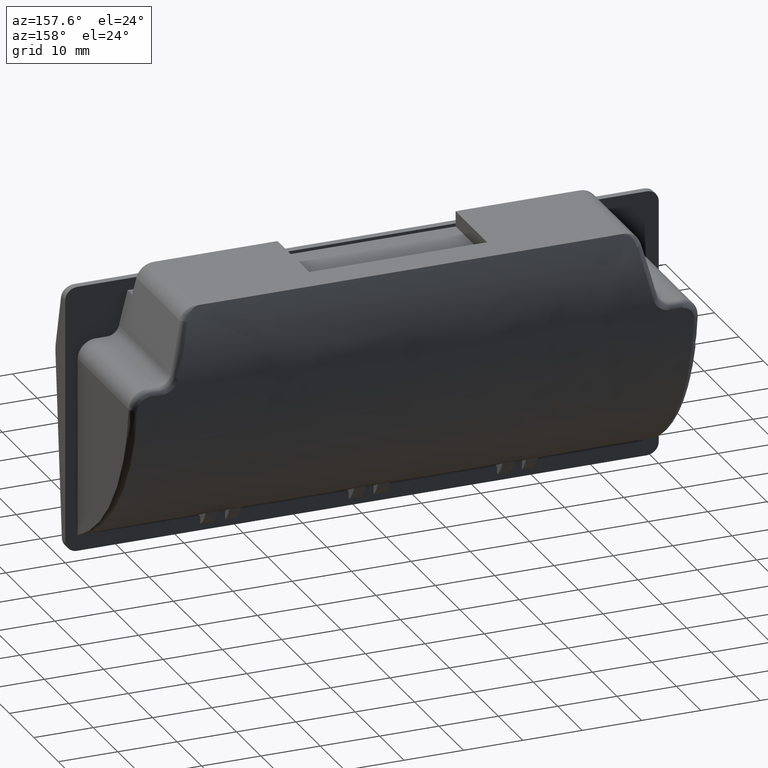
[diagram: clean part render]
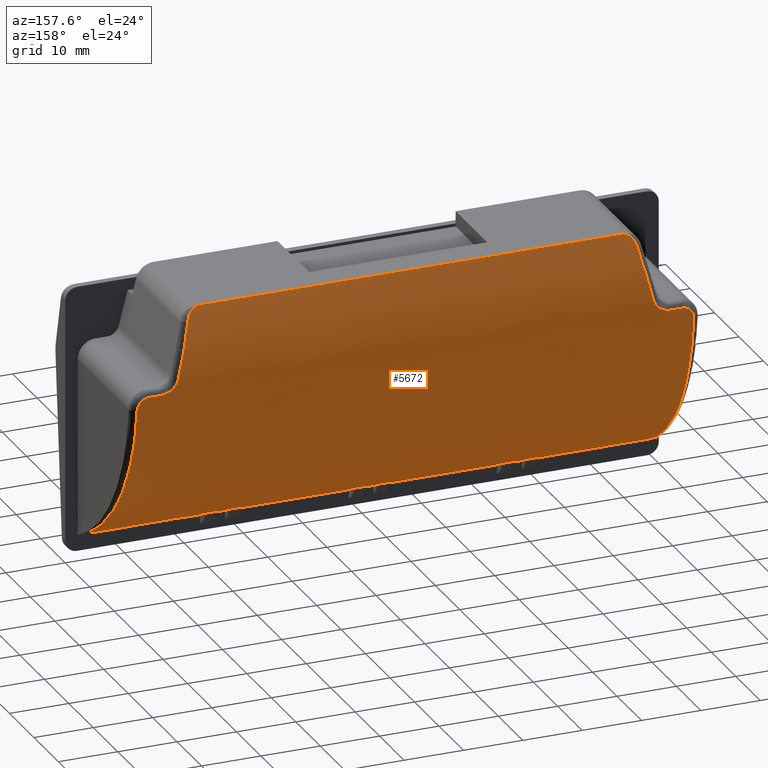
[diagram: same view with one face highlighted and labeled with its STEP entity id]
A machine part, auxiliary view. The second image highlights one B-rep face of the part: STEP entity #5672.
In plain terms, the highlighted face is a freeform B-spline surface patch.
Its self-contained STEP definition (entity closure, byte-faithful):
#182=CARTESIAN_POINT('',(-47.896685749016193,-0.001224091961159,-20.546921611470491));
#183=VERTEX_POINT('',#182);
#184=CARTESIAN_POINT('',(-46.899999999999999,21.852389405818052,9.359535774184069));
#185=VERTEX_POINT('',#184);
#186=CARTESIAN_POINT('',(-47.896685749016193,-0.001224091961159,-20.546921611470491));
#187=CARTESIAN_POINT('',(-47.885773402638563,0.259481165434836,-20.434799618005250));
#188=CARTESIAN_POINT('',(-47.864317647580421,0.772076755020469,-20.214344328507622));
#189=CARTESIAN_POINT('',(-47.832779046622193,1.517805225134992,-19.867136862326682));
#190=CARTESIAN_POINT('',(-47.802418920714970,2.230138305095111,-19.517290070802410));
#191=CARTESIAN_POINT('',(-47.773245712067776,2.908845177937521,-19.165151865281640));
#192=CARTESIAN_POINT('',(-47.745257845779683,3.554638972780887,-18.812920656426929));
#193=CARTESIAN_POINT('',(-47.718455584276178,4.168058561744786,-18.462203011982002));
#194=CARTESIAN_POINT('',(-47.692838732872502,4.749725880659209,-18.114641992472290));
#195=CARTESIAN_POINT('',(-47.668407215307653,5.300272014121669,-17.771759969972820));
#196=CARTESIAN_POINT('',(-47.645160939336229,5.820347497085275,-17.435000349067948));
#197=CARTESIAN_POINT('',(-47.623099785851593,6.310611906358920,-17.105719307174109));
#198=CARTESIAN_POINT('',(-47.602223758593681,6.771728957045408,-16.785190470616321));
#199=CARTESIAN_POINT('',(-47.582532428413458,7.204361302212331,-16.474605907650890));
#200=CARTESIAN_POINT('',(-47.564026844765017,7.609163722067380,-16.175080166814439));
#201=CARTESIAN_POINT('',(-47.546702965801543,7.986784495201670,-15.887646699884010));
#202=CARTESIAN_POINT('',(-47.503812097618699,8.920330609838373,-15.158035507260561));
#203=CARTESIAN_POINT('',(-47.438086533676028,10.336639639167791,-13.950080177221521));
#204=CARTESIAN_POINT('',(-47.353716663395041,12.118777634518770,-12.195896075829911));
#205=CARTESIAN_POINT('',(-47.278146003832717,13.688244678134330,-10.427140885081601));
#206=CARTESIAN_POINT('',(-47.212780351498068,15.028524516021699,-8.707317518512564));
#207=CARTESIAN_POINT('',(-47.156402691244452,16.181091975844559,-7.037042273072355));
#208=CARTESIAN_POINT('',(-47.107466732424740,17.181155548372541,-5.407441420251323));
#209=CARTESIAN_POINT('',(-47.063686413280230,18.077077904532629,-3.758933633686135));
#210=CARTESIAN_POINT('',(-47.025065797716792,18.871339969496852,-2.098653399444526));
#211=CARTESIAN_POINT('',(-46.991604031524943,19.566795058013358,-0.433301272962154));
#212=CARTESIAN_POINT('',(-46.963298119086488,20.166690797693182,1.230867502905395));
#213=CARTESIAN_POINT('',(-46.940158262096460,20.674390251261880,2.888064594630160));
#214=CARTESIAN_POINT('',(-46.922145723514390,21.094157752944991,4.532893349213828));
#215=CARTESIAN_POINT('',(-46.909399263877361,21.428112216367659,6.160617492438631));
#216=CARTESIAN_POINT('',(-46.901416246937977,21.687043396067569,7.766168532635901));
#217=CARTESIAN_POINT('',(-46.900468573068011,21.797683771515960,8.832361482185121));
#218=CARTESIAN_POINT('',(-46.899999999999999,21.852389405818052,9.359535774184069));
#219=B_SPLINE_CURVE_WITH_KNOTS('',3,(#186,#187,#188,#189,#190,#191,#192,#193,#194,#195,#196,#197,#198,#199,#200,#201,#202,#203,#204,#205,#206,#207,#208,#209,#210,#211,#212,#213,#214,#215,#216,#217,#218),.UNSPECIFIED.,.F.,.U.,(4,1,1,1,1,1,1,1,1,1,1,1,1,1,1,1,1,1,1,1,1,1,1,1,1,1,1,1,1,1,4),(0.000005639576252,0.021896131467624,0.043046539183044,0.063451219886814,0.083110170459251,0.102023387923423,0.120190869448762,0.137612612355442,0.154288614119736,0.170218872380634,0.185403384948071,0.199842149813302,0.213535165162078,0.226482429391637,0.238683941132872,0.250139699279726,0.317873748717035,0.382114477535371,0.442861840647980,0.500115838875528,0.550158430046920,0.599280517912298,0.647482332891308,0.694764119786767,0.741126138904787,0.786568667287427,0.831092000071647,0.874696451990360,0.917382359033694,0.959150080291330,1.0),.UNSPECIFIED.);
#220=EDGE_CURVE('',#183,#185,#219,.T.);
#358=CARTESIAN_POINT('',(-44.900000000000013,21.980008804350351,11.416678631326921));
#359=VERTEX_POINT('',#358);
#375=CARTESIAN_POINT('',(-46.899999999999999,21.852389405818052,9.359535774184069));
#376=CARTESIAN_POINT('',(-46.900000000000020,21.864516404296889,9.493039091184595));
#377=CARTESIAN_POINT('',(-46.887483280503481,21.875774419913810,9.625251615995460));
#378=CARTESIAN_POINT('',(-46.849967114386693,21.891425652238929,9.821632204573520));
#379=CARTESIAN_POINT('',(-46.834293989078233,21.896429323675399,9.886699851274436));
#380=CARTESIAN_POINT('',(-46.797200243700942,21.905878902245579,10.013954488775161));
#381=CARTESIAN_POINT('',(-46.754263704559712,21.914817017285241,10.138899526170700));
#382=CARTESIAN_POINT('',(-46.699736514937761,21.922807463528301,10.259258262620371));
#383=CARTESIAN_POINT('',(-46.654407360013302,21.928469011575711,10.347770762046160));
#384=CARTESIAN_POINT('',(-46.638557398416779,21.930300940911131,10.376981657535991));
#385=CARTESIAN_POINT('',(-46.605345984128753,21.933857884422551,10.434804214819650));
#386=CARTESIAN_POINT('',(-46.587940779102311,21.935586499632521,10.463478833631010));
#387=CARTESIAN_POINT('',(-46.497951242813883,21.943889836235410,10.603923054933061));
#388=CARTESIAN_POINT('',(-46.416147162315767,21.949507363676659,10.707827195477909));
#389=CARTESIAN_POINT('',(-46.278877352507763,21.956732631416610,10.851123036771400));
#390=CARTESIAN_POINT('',(-46.230676644731410,21.958939430682481,10.896780416855030));
#391=CARTESIAN_POINT('',(-46.154567264591869,21.961978119785890,10.961979767377750));
#392=CARTESIAN_POINT('',(-46.128528106310277,21.962946464013090,10.983183553903631));
#393=CARTESIAN_POINT('',(-46.075751831466746,21.964777170750210,11.024010295074969));
#394=CARTESIAN_POINT('',(-46.048947102310450,21.965642429565630,11.043694267699181));
#395=CARTESIAN_POINT('',(-45.912868158231937,21.969738254051620,11.138514883354990));
#396=CARTESIAN_POINT('',(-45.797487984118469,21.972286621965878,11.202958641015700));
#397=CARTESIAN_POINT('',(-45.614447213703208,21.975281593159298,11.282151905878010));
#398=CARTESIAN_POINT('',(-45.551382428418641,21.976143692292130,11.305717605389750));
#399=CARTESIAN_POINT('',(-45.424263190398563,21.977585776762002,11.345922627654540));
#400=CARTESIAN_POINT('',(-45.360112334454698,21.978169476249771,11.362652418637079));
#401=CARTESIAN_POINT('',(-45.165923140560558,21.979557957052631,11.402933755729549));
#402=CARTESIAN_POINT('',(-45.034165973739107,21.980008804350359,11.416678631326921));
#403=CARTESIAN_POINT('',(-44.900000000000013,21.980008804350351,11.416678631326921));
#404=B_SPLINE_CURVE_WITH_KNOTS('',3,(#375,#376,#377,#378,#379,#380,#381,#382,#383,#384,#385,#386,#387,#388,#389,#390,#391,#392,#393,#394,#395,#396,#397,#398,#399,#400,#401,#402,#403),.UNSPECIFIED.,.F.,.U.,(4,2,2,1,2,2,2,2,2,2,2,2,2,2,4),(0.0,0.124999999999990,0.187499999999986,0.249999999999983,0.312499999999979,0.343749999999979,0.374999999999980,0.499999999999986,0.562499999999992,0.593749999999996,0.624999999999999,0.750000000000001,0.812499999999999,0.874999999999998,1.0),.UNSPECIFIED.);
#405=EDGE_CURVE('',#185,#359,#404,.T.);
#461=CARTESIAN_POINT('',(-42.899999999999999,21.980008804350351,11.416678631326921));
#462=VERTEX_POINT('',#461);
#478=CARTESIAN_POINT('',(-44.900000000000013,21.980008804350351,11.416678631326921));
#479=CARTESIAN_POINT('',(-42.899999999999999,21.980008804350351,11.416678631326921));
#480=QUASI_UNIFORM_CURVE('',1,(#478,#479),.UNSPECIFIED.,.F.,.U.);
#481=EDGE_CURVE('',#359,#462,#480,.T.);
#532=CARTESIAN_POINT('',(-39.991277135578251,21.982236698723849,13.747018506731020));
#533=VERTEX_POINT('',#532);
#547=CARTESIAN_POINT('',(-42.899999999999999,21.980008804350351,11.416678631326921));
#548=CARTESIAN_POINT('',(-42.730981769640920,21.980008804350351,11.416678631326921));
#549=CARTESIAN_POINT('',(-42.564334933638790,21.980503485457071,11.431264111568360));
#550=CARTESIAN_POINT('',(-42.317777236776401,21.981881275858569,11.474133958457980));
#551=CARTESIAN_POINT('',(-42.236163227712453,21.982445618394941,11.491941813435860));
#552=CARTESIAN_POINT('',(-42.114609343296387,21.983427898337819,11.523988364164870));
#553=CARTESIAN_POINT('',(-42.074236090075971,21.983777889493521,11.535560827425360));
#554=CARTESIAN_POINT('',(-41.993782882736618,21.984518532182680,11.560510358557741));
#555=CARTESIAN_POINT('',(-41.953636822896208,21.984909935774599,11.573914774342990));
#556=CARTESIAN_POINT('',(-41.755460677760013,21.986936652594139,11.644850265543340));
#557=CARTESIAN_POINT('',(-41.603792400148293,21.988794214440009,11.714373309548870));
#558=CARTESIAN_POINT('',(-41.386154235536416,21.991588537919611,11.837000692940050));
#559=CARTESIAN_POINT('',(-41.315261231993397,21.992520782920550,11.880950388762621));
#560=CARTESIAN_POINT('',(-41.211423987213628,21.993870347403870,11.951529090558619));
#561=CARTESIAN_POINT('',(-41.177229147259951,21.994312010929640,11.975832007234470));
#562=CARTESIAN_POINT('',(-41.109685014616751,21.995169811494080,12.026010746033290));
#563=CARTESIAN_POINT('',(-41.076261992817820,21.995586815053692,12.051949008904060));
#564=CARTESIAN_POINT('',(-40.912622980210649,21.997567768273811,12.184542900498350));
#565=CARTESIAN_POINT('',(-40.792206983161563,21.998828460150740,12.300167797804850));
#566=CARTESIAN_POINT('',(-40.626584416537867,21.999822926898361,12.487257531373320));
#567=CARTESIAN_POINT('',(-40.573890796368580,22.000004768246470,12.551908605758319));
#568=CARTESIAN_POINT('',(-40.473564453791653,21.999995041823450,12.685816917467671));
#569=CARTESIAN_POINT('',(-40.425811421543067,21.999802361092371,12.755267292585771));
#570=CARTESIAN_POINT('',(-40.291150161124811,21.998550624905111,12.969431452288759));
#571=CARTESIAN_POINT('',(-40.214109644634078,21.996835044621822,13.117654908643090));
#572=CARTESIAN_POINT('',(-40.084293675240097,21.991253291011741,13.424473587816790));
#573=CARTESIAN_POINT('',(-40.031520891476220,21.987388912196071,13.583069988650360));
#574=CARTESIAN_POINT('',(-39.991277135578251,21.982236698723849,13.747018506731020));
#575=B_SPLINE_CURVE_WITH_KNOTS('',3,(#547,#548,#549,#550,#551,#552,#553,#554,#555,#556,#557,#558,#559,#560,#561,#562,#563,#564,#565,#566,#567,#568,#569,#570,#571,#572,#573,#574),.UNSPECIFIED.,.F.,.U.,(4,2,2,2,2,2,2,2,2,2,2,2,2,4),(0.0,0.125000000000002,0.187500000000004,0.218750000000004,0.250000000000005,0.374999999999991,0.437499999999982,0.468749999999980,0.499999999999977,0.624999999999982,0.687499999999983,0.749999999999985,0.874999999999993,1.0),.UNSPECIFIED.);
#576=EDGE_CURVE('',#462,#533,#575,.T.);
#657=CARTESIAN_POINT('',(-37.839148576280898,20.612478520600650,22.514547285819450));
#658=VERTEX_POINT('',#657);
#672=CARTESIAN_POINT('',(-39.991277135578251,21.982236698723849,13.747018506731020));
#673=CARTESIAN_POINT('',(-38.894333844764773,21.841800353381220,18.215841630557282));
#674=CARTESIAN_POINT('',(-37.839148576280863,20.612478520600661,22.514547285819440));
#682=(BOUNDED_CURVE()B_SPLINE_CURVE(2,(#672,#673,#674),.UNSPECIFIED.,.F.,.U.)CURVE()GEOMETRIC_REPRESENTATION_ITEM()QUASI_UNIFORM_CURVE()RATIONAL_B_SPLINE_CURVE((1.0,0.992375855348941,1.0))REPRESENTATION_ITEM(''));
#683=EDGE_CURVE('',#533,#658,#682,.T.);
#750=CARTESIAN_POINT('',(-35.899999999999999,19.893540093386449,24.750000000000000));
#751=VERTEX_POINT('',#750);
#771=CARTESIAN_POINT('',(-37.839148576281019,20.612478520600629,22.514547285819521));
#772=CARTESIAN_POINT('',(-37.811353248017703,20.581593149868969,22.621462789434151));
#773=CARTESIAN_POINT('',(-37.758000227875208,20.522308805710718,22.826686666045831));
#774=CARTESIAN_POINT('',(-37.660629008083028,20.435297137030290,23.115549123659651));
#775=CARTESIAN_POINT('',(-37.554106952614603,20.355457644219719,23.373786843167888));
#776=CARTESIAN_POINT('',(-37.437679125176572,20.283186618034769,23.601667386496331));
#777=CARTESIAN_POINT('',(-37.270447762360909,20.199784309075980,23.859158168393432));
#778=CARTESIAN_POINT('',(-37.031345041766592,20.108158348822581,24.134343147593491));
#779=CARTESIAN_POINT('',(-36.698301672683129,20.015373889383831,24.405048894333149));
#780=CARTESIAN_POINT('',(-36.319895173752997,19.940662341684451,24.618056167207889));
#781=CARTESIAN_POINT('',(-36.041372608112262,19.909405470171940,24.705576427327149));
#782=CARTESIAN_POINT('',(-35.899999999999999,19.893540093386449,24.750000000000000));
#783=B_SPLINE_CURVE_WITH_KNOTS('',3,(#771,#772,#773,#774,#775,#776,#777,#778,#779,#780,#781,#782),.UNSPECIFIED.,.F.,.U.,(4,1,1,1,1,1,1,1,1,4),(0.0,0.107009702832300,0.205404691628871,0.295551452508698,0.377926642308072,0.453154796772866,0.592028208657423,0.726668599921010,0.861262326019188,1.0),.UNSPECIFIED.);
#784=EDGE_CURVE('',#658,#751,#783,.T.);
#1008=CARTESIAN_POINT('',(46.899999999999999,21.852389405818052,9.359535774184069));
#1009=VERTEX_POINT('',#1008);
#1021=CARTESIAN_POINT('',(47.896686583894329,-0.001223783607167,-20.546922386931310));
#1022=VERTEX_POINT('',#1021);
#1035=CARTESIAN_POINT('',(46.899999999999999,21.852389405818052,9.359535774184069));
#1036=CARTESIAN_POINT('',(46.900130361389550,21.824126748446901,9.070914564498111));
#1037=CARTESIAN_POINT('',(46.900392703717657,21.767250311650500,8.490086450027960));
#1038=CARTESIAN_POINT('',(46.902768869087922,21.654446936789871,7.616436966000594));
#1039=CARTESIAN_POINT('',(46.906589546105813,21.520070123925340,6.734975467200311));
#1040=CARTESIAN_POINT('',(46.912002295349417,21.361453989155269,5.846541585613918));
#1041=CARTESIAN_POINT('',(46.918966877459887,21.178431435632142,4.951787939603158));
#1042=CARTESIAN_POINT('',(46.927494300108407,20.970168959908360,4.051468417638176));
#1043=CARTESIAN_POINT('',(46.937581594908011,20.736032664851500,3.146360155846571));
#1044=CARTESIAN_POINT('',(46.949229609765730,20.475354510786619,2.237285367648124));
#1045=CARTESIAN_POINT('',(46.962438156509222,20.187498646524240,1.325105840215020));
#1046=CARTESIAN_POINT('',(46.977207334216253,19.871845990658809,0.410724782644463));
#1047=CARTESIAN_POINT('',(46.993537168571173,19.527801188955529,-0.504913440664827));
#1048=CARTESIAN_POINT('',(47.011427710539891,19.154793556577861,-1.420823115530112));
#1049=CARTESIAN_POINT('',(47.030879008887318,18.752279735175851,-2.335977239578807));
#1050=CARTESIAN_POINT('',(47.051891120707303,18.319745978987100,-3.249307622699699));
#1051=CARTESIAN_POINT('',(47.074464097788422,17.856710541690500,-4.159705203527599));
#1052=CARTESIAN_POINT('',(47.098598031888841,17.362726382553021,-5.066020121980664));
#1053=CARTESIAN_POINT('',(47.124292885518472,16.837382794482920,-5.967063270141456));
#1054=CARTESIAN_POINT('',(47.151549133423842,16.280311382223509,-6.861602833886648));
#1055=CARTESIAN_POINT('',(47.180365331777530,15.691175752283510,-7.748380441149324));
#1056=CARTESIAN_POINT('',(47.221492097410703,14.849942860277499,-8.936447779349912));
#1057=CARTESIAN_POINT('',(47.278137871129097,13.688388664463799,-10.426955493683650));
#1058=CARTESIAN_POINT('',(47.353703007193701,12.119038236836079,-12.195614584156310));
#1059=CARTESIAN_POINT('',(47.438086720873748,10.336814078119859,-13.949921898988350));
#1060=CARTESIAN_POINT('',(47.510202490910437,8.782194352350041,-15.275855197761461));
#1061=CARTESIAN_POINT('',(47.567787853458903,7.527715837626763,-16.241087689689920));
#1062=CARTESIAN_POINT('',(47.609287539917183,6.617587892288705,-16.899789099781930));
#1063=CARTESIAN_POINT('',(47.656212812873193,5.575683268444858,-17.602504758107148));
#1064=CARTESIAN_POINT('',(47.708581939447740,4.395607381269108,-18.337172356528821));
#1065=CARTESIAN_POINT('',(47.766396713674943,3.070346624138356,-19.088091536228621));
#1066=CARTESIAN_POINT('',(47.829634092642529,1.596693247487032,-19.845537381553321));
#1067=CARTESIAN_POINT('',(47.873768018016023,0.544945397550837,-20.307190346547650));
#1068=CARTESIAN_POINT('',(47.896686583894329,-0.001223783607167,-20.546922386931310));
#1069=B_SPLINE_CURVE_WITH_KNOTS('',3,(#1035,#1036,#1037,#1038,#1039,#1040,#1041,#1042,#1043,#1044,#1045,#1046,#1047,#1048,#1049,#1050,#1051,#1052,#1053,#1054,#1055,#1056,#1057,#1058,#1059,#1060,#1061,#1062,#1063,#1064,#1065,#1066,#1067,#1068),.UNSPECIFIED.,.F.,.U.,(4,1,1,1,1,1,1,1,1,1,1,1,1,1,1,1,1,1,1,1,1,1,1,1,1,1,1,1,1,1,1,4),(0.0,0.022353797540702,0.044985308220906,0.067894600150437,0.091081738966689,0.114546787950870,0.138289808137503,0.162310858417658,0.186609995636323,0.211187274684329,0.236042748585162,0.261176468577026,0.286588484190434,0.312278843321648,0.338247592302205,0.364494775964783,0.391020437705642,0.417824619543845,0.444907362177449,0.472268705036868,0.499908686335553,0.557152466290041,0.617895502307022,0.682137794523149,0.749879297045279,0.775335300922110,0.804216655709691,0.836523269099693,0.872255035229616,0.911411835329557,0.953993538109033,0.999993731756879),.UNSPECIFIED.);
#1070=EDGE_CURVE('',#1009,#1022,#1069,.T.);
#1183=CARTESIAN_POINT('',(44.900000000000013,21.980008804350351,11.416678631326921));
#1184=VERTEX_POINT('',#1183);
#1237=CARTESIAN_POINT('',(44.900000000000013,21.980008804350351,11.416678631326921));
#1238=CARTESIAN_POINT('',(45.034157543835583,21.980008804350351,11.416678631326921));
#1239=CARTESIAN_POINT('',(45.166743250429903,21.979558311088311,11.402933143789509));
#1240=CARTESIAN_POINT('',(45.363287789990672,21.978143576482928,11.361906629499529));
#1241=CARTESIAN_POINT('',(45.428114319701983,21.977547271626989,11.344832148995909));
#1242=CARTESIAN_POINT('',(45.554572078045133,21.976102027736850,11.304573937599891));
#1243=CARTESIAN_POINT('',(45.678397935115051,21.974400330008780,11.258095900646840));
#1244=CARTESIAN_POINT('',(45.797053272866769,21.972122537790071,11.199401437881241));
#1245=CARTESIAN_POINT('',(45.913093558826603,21.969508838426009,11.134530081744790));
#1246=CARTESIAN_POINT('',(45.970106082118257,21.968023829086309,11.098775070520199));
#1247=CARTESIAN_POINT('',(46.133933751448971,21.963066975897569,10.984175122711999));
#1248=CARTESIAN_POINT('',(46.234143428558923,21.959097088623452,10.897959922826020));
#1249=CARTESIAN_POINT('',(46.371419729854821,21.951856599926870,10.754447357916680));
#1250=CARTESIAN_POINT('',(46.414989533308542,21.949227525523440,10.704227527729550));
#1251=CARTESIAN_POINT('',(46.497638209249729,21.943470910355352,10.598902986129429));
#1252=CARTESIAN_POINT('',(46.536128926052662,21.940383025952180,10.544535332784161));
#1253=CARTESIAN_POINT('',(46.643013604620592,21.930471997702220,10.377122597889009));
#1254=CARTESIAN_POINT('',(46.703099825999587,21.922991176258058,10.259548320852550));
#1255=CARTESIAN_POINT('',(46.776520987866398,21.910196778423600,10.074280293994200));
#1256=CARTESIAN_POINT('',(46.798245242344933,21.905647171631578,10.010754968979620));
#1257=CARTESIAN_POINT('',(46.835205675839063,21.896160721996349,9.883165821651311));
#1258=CARTESIAN_POINT('',(46.850561021648872,21.891209304053589,9.818870905580743));
#1259=CARTESIAN_POINT('',(46.887485947057542,21.875708923498941,9.624525533234916));
#1260=CARTESIAN_POINT('',(46.899999999999977,21.864515441253950,9.493028489268163));
#1261=CARTESIAN_POINT('',(46.899999999999999,21.852389405818052,9.359535774184069));
#1262=B_SPLINE_CURVE_WITH_KNOTS('',3,(#1237,#1238,#1239,#1240,#1241,#1242,#1243,#1244,#1245,#1246,#1247,#1248,#1249,#1250,#1251,#1252,#1253,#1254,#1255,#1256,#1257,#1258,#1259,#1260,#1261),.UNSPECIFIED.,.F.,.U.,(4,2,2,1,2,2,2,2,2,2,2,2,4),(0.0,0.124999999999997,0.187499999999995,0.249999999999994,0.312499999999992,0.374999999999990,0.499999999999992,0.562499999999994,0.624999999999995,0.749999999999997,0.812499999999997,0.874999999999998,1.0),.UNSPECIFIED.);
#1263=EDGE_CURVE('',#1184,#1009,#1262,.T.);
#1282=CARTESIAN_POINT('',(42.899999999999999,21.980008804350351,11.416678631326921));
#1283=VERTEX_POINT('',#1282);
#1307=CARTESIAN_POINT('',(42.899999999999999,21.980008804350351,11.416678631326921));
#1308=CARTESIAN_POINT('',(44.900000000000013,21.980008804350351,11.416678631326921));
#1309=QUASI_UNIFORM_CURVE('',1,(#1307,#1308),.UNSPECIFIED.,.F.,.U.);
#1310=EDGE_CURVE('',#1283,#1184,#1309,.T.);
#1393=CARTESIAN_POINT('',(39.991277135578251,21.982236698723849,13.747018506730960));
#1394=VERTEX_POINT('',#1393);
#1436=CARTESIAN_POINT('',(39.991277135578251,21.982236698723849,13.747018506730960));
#1437=CARTESIAN_POINT('',(40.031522691082230,21.987389142590910,13.583062657259410));
#1438=CARTESIAN_POINT('',(40.084339528145250,21.991258618018829,13.424293762526631));
#1439=CARTESIAN_POINT('',(40.181938662461192,21.995450089303151,13.193726581355641));
#1440=CARTESIAN_POINT('',(40.217549525540697,21.996577930853739,13.118141632228969));
#1441=CARTESIAN_POINT('',(40.295032708775771,21.998342905852368,12.969558078298689));
#1442=CARTESIAN_POINT('',(40.337070871214060,21.998981275477622,12.896301278589140));
#1443=CARTESIAN_POINT('',(40.471739042212782,22.000221551265760,12.682424334465599));
#1444=CARTESIAN_POINT('',(40.571961408969962,22.000152905569738,12.548884251819331));
#1445=CARTESIAN_POINT('',(40.737631981482629,21.999155143041300,12.361854981606861));
#1446=CARTESIAN_POINT('',(40.795424663422487,21.998672607825160,12.301736613592880));
#1447=CARTESIAN_POINT('',(40.916251544596143,21.997475837408480,12.186038405648420));
#1448=CARTESIAN_POINT('',(40.979440554190482,21.996759637753520,12.130333541543431));
#1449=CARTESIAN_POINT('',(41.176187475466790,21.994375652232520,11.971119894856709));
#1450=CARTESIAN_POINT('',(41.314408801789902,21.992509378870501,11.877366376467910));
#1451=CARTESIAN_POINT('',(41.604596893568107,21.988784207866459,11.713979352194571));
#1452=CARTESIAN_POINT('',(41.756728529101402,21.986921399423689,11.644281173066499));
#1453=CARTESIAN_POINT('',(42.074857347257471,21.983672545144781,11.530641484419300));
#1454=CARTESIAN_POINT('',(42.236449230808986,21.982334845307509,11.488244531300561));
#1455=CARTESIAN_POINT('',(42.564508640992621,21.980503417618380,11.431264214890930));
#1456=CARTESIAN_POINT('',(42.730975773987211,21.980008804350341,11.416678631326921));
#1457=CARTESIAN_POINT('',(42.899999999999999,21.980008804350351,11.416678631326921));
#1458=B_SPLINE_CURVE_WITH_KNOTS('',3,(#1436,#1437,#1438,#1439,#1440,#1441,#1442,#1443,#1444,#1445,#1446,#1447,#1448,#1449,#1450,#1451,#1452,#1453,#1454,#1455,#1456,#1457),.UNSPECIFIED.,.F.,.U.,(4,2,2,2,2,2,2,2,2,2,4),(0.0,0.125000000000002,0.187500000000002,0.250000000000002,0.375000000000003,0.437500000000003,0.500000000000003,0.625000000000002,0.750000000000001,0.875000000000001,1.0),.UNSPECIFIED.);
#1459=EDGE_CURVE('',#1394,#1283,#1458,.T.);
#1512=CARTESIAN_POINT('',(37.839148576281147,20.612478520600700,22.514547285819351));
#1513=VERTEX_POINT('',#1512);
#1543=CARTESIAN_POINT('',(37.839148576281147,20.612478520600700,22.514547285819351));
#1544=CARTESIAN_POINT('',(38.894333844764915,21.841800353381295,18.215841630556962));
#1545=CARTESIAN_POINT('',(39.991277135578173,21.982236698723870,13.747018506730960));
#1553=(BOUNDED_CURVE()B_SPLINE_CURVE(2,(#1543,#1544,#1545),.UNSPECIFIED.,.F.,.U.)CURVE()GEOMETRIC_REPRESENTATION_ITEM()QUASI_UNIFORM_CURVE()RATIONAL_B_SPLINE_CURVE((1.0,0.992375855348944,1.0))REPRESENTATION_ITEM(''));
#1554=EDGE_CURVE('',#1513,#1394,#1553,.T.);
#1671=CARTESIAN_POINT('',(35.899999999999999,19.893540093386449,24.750000000000000));
#1672=VERTEX_POINT('',#1671);
#1673=CARTESIAN_POINT('',(35.899999999999999,19.893540093386449,24.750000000000000));
#1674=CARTESIAN_POINT('',(35.971908723157263,19.901021176630248,24.729073450007419));
#1675=CARTESIAN_POINT('',(36.114164903794418,19.915820915557148,24.687674702468460));
#1676=CARTESIAN_POINT('',(36.317985576727331,19.944970250857988,24.605489132863791));
#1677=CARTESIAN_POINT('',(36.511004439492027,19.978772748932620,24.509397655693629));
#1678=CARTESIAN_POINT('',(36.692767084002050,20.017592283319999,24.397956923035821));
#1679=CARTESIAN_POINT('',(36.863326086297633,20.061151382164159,24.271488891549200));
#1680=CARTESIAN_POINT('',(37.022705253040741,20.109286539787529,24.129923229668581));
#1681=CARTESIAN_POINT('',(37.170587891944663,20.161870921799078,23.973047086309968));
#1682=CARTESIAN_POINT('',(37.391776473367251,20.252722087234812,23.697457782329199));
#1683=CARTESIAN_POINT('',(37.645652763371857,20.407339515971401,23.215214311068578));
#1684=CARTESIAN_POINT('',(37.770023712781317,20.539194218060651,22.764855092230789));
#1685=CARTESIAN_POINT('',(37.839148576281147,20.612478520600700,22.514547285819351));
#1686=B_SPLINE_CURVE_WITH_KNOTS('',3,(#1673,#1674,#1675,#1676,#1677,#1678,#1679,#1680,#1681,#1682,#1683,#1684,#1685),.UNSPECIFIED.,.F.,.U.,(4,1,1,1,1,1,1,1,1,1,4),(0.0,0.070192661334592,0.138861315731970,0.206502697898061,0.273636348958989,0.340793594314227,0.408505203405899,0.477289113076353,0.547639579915645,0.748579934144833,1.000000000000000),.UNSPECIFIED.);
#1687=EDGE_CURVE('',#1672,#1513,#1686,.T.);
#3549=CARTESIAN_POINT('',(-30.0,0.0,-20.550000000000001));
#3550=VERTEX_POINT('',#3549);
#3551=CARTESIAN_POINT('',(-30.0,1.129978450201466,-20.050000000000001));
#3552=VERTEX_POINT('',#3551);
#3553=CARTESIAN_POINT('',(-30.0,2.949030E-014,-20.550000000000079));
#3554=CARTESIAN_POINT('',(-29.999999999999996,0.569280337097643,-20.309697728168100));
#3555=CARTESIAN_POINT('',(-30.0,1.129978450201456,-20.049999999999990));
#3563=(BOUNDED_CURVE()B_SPLINE_CURVE(2,(#3553,#3554,#3555),.UNSPECIFIED.,.F.,.U.)CURVE()GEOMETRIC_REPRESENTATION_ITEM()QUASI_UNIFORM_CURVE()RATIONAL_B_SPLINE_CURVE((1.0,0.999852723404617,1.0))REPRESENTATION_ITEM(''));
#3564=EDGE_CURVE('',#3550,#3552,#3563,.T.);
#3586=CARTESIAN_POINT('',(30.0,0.0,-20.550000000000001));
#3587=VERTEX_POINT('',#3586);
#3595=CARTESIAN_POINT('',(30.0,1.129978450201466,-20.050000000000001));
#3596=VERTEX_POINT('',#3595);
#3602=CARTESIAN_POINT('',(30.0,0.0,-20.550000000000001));
#3603=CARTESIAN_POINT('',(29.999999999999996,0.569280337097643,-20.309697728168100));
#3604=CARTESIAN_POINT('',(30.0,1.129978450201456,-20.049999999999990));
#3612=(BOUNDED_CURVE()B_SPLINE_CURVE(2,(#3602,#3603,#3604),.UNSPECIFIED.,.F.,.U.)CURVE()GEOMETRIC_REPRESENTATION_ITEM()QUASI_UNIFORM_CURVE()RATIONAL_B_SPLINE_CURVE((1.0,0.999852723404617,1.0))REPRESENTATION_ITEM(''));
#3613=EDGE_CURVE('',#3587,#3596,#3612,.T.);
#3623=CARTESIAN_POINT('',(26.000000000027100,3.999999999999920,-18.560666632685951));
#3624=VERTEX_POINT('',#3623);
#3640=CARTESIAN_POINT('',(26.000000000027100,2.300000000000070,-19.482194426253901));
#3641=VERTEX_POINT('',#3640);
#3647=CARTESIAN_POINT('',(26.000000000027100,2.300000000000057,-19.482194426253908));
#3648=CARTESIAN_POINT('',(26.000000000027097,3.162379205165029,-19.044267224062683));
#3649=CARTESIAN_POINT('',(26.000000000027100,3.999999999999908,-18.560666632685940));
#3657=(BOUNDED_CURVE()B_SPLINE_CURVE(2,(#3647,#3648,#3649),.UNSPECIFIED.,.F.,.U.)CURVE()GEOMETRIC_REPRESENTATION_ITEM()QUASI_UNIFORM_CURVE()RATIONAL_B_SPLINE_CURVE((1.0,0.999639285494769,1.0))REPRESENTATION_ITEM(''));
#3658=EDGE_CURVE('',#3641,#3624,#3657,.T.);
#3668=CARTESIAN_POINT('',(24.000000000027349,2.300000000000070,-19.482194426253901));
#3669=VERTEX_POINT('',#3668);
#3670=CARTESIAN_POINT('',(24.000000000027349,3.999999999999901,-18.560666632685951));
#3671=VERTEX_POINT('',#3670);
#3672=CARTESIAN_POINT('',(24.000000000027349,2.300000000000057,-19.482194426253908));
#3673=CARTESIAN_POINT('',(24.000000000027345,3.162379205164973,-19.044267224062711));
#3674=CARTESIAN_POINT('',(24.000000000027349,3.999999999999891,-18.560666632685951));
#3682=(BOUNDED_CURVE()B_SPLINE_CURVE(2,(#3672,#3673,#3674),.UNSPECIFIED.,.F.,.U.)CURVE()GEOMETRIC_REPRESENTATION_ITEM()QUASI_UNIFORM_CURVE()RATIONAL_B_SPLINE_CURVE((1.0,0.999639285494769,1.0))REPRESENTATION_ITEM(''));
#3683=EDGE_CURVE('',#3669,#3671,#3682,.T.);
#3714=CARTESIAN_POINT('',(24.000000000027349,2.300000000000070,-19.482194426253901));
#3715=CARTESIAN_POINT('',(26.000000000027100,2.300000000000070,-19.482194426253901));
#3716=QUASI_UNIFORM_CURVE('',1,(#3714,#3715),.UNSPECIFIED.,.F.,.U.);
#3717=EDGE_CURVE('',#3669,#3641,#3716,.T.);
#3735=CARTESIAN_POINT('',(-1.000000000027090,3.999999999999901,-18.560666632685951));
#3736=VERTEX_POINT('',#3735);
#3750=CARTESIAN_POINT('',(-1.000000000027090,2.300000000000070,-19.482194426253901));
#3751=VERTEX_POINT('',#3750);
#3752=CARTESIAN_POINT('',(-1.000000000027090,2.300000000000057,-19.482194426253908));
#3753=CARTESIAN_POINT('',(-1.000000000027090,3.162379205164973,-19.044267224062711));
#3754=CARTESIAN_POINT('',(-1.000000000027090,3.999999999999891,-18.560666632685951));
#3762=(BOUNDED_CURVE()B_SPLINE_CURVE(2,(#3752,#3753,#3754),.UNSPECIFIED.,.F.,.U.)CURVE()GEOMETRIC_REPRESENTATION_ITEM()QUASI_UNIFORM_CURVE()RATIONAL_B_SPLINE_CURVE((1.0,0.999639285494769,1.0))REPRESENTATION_ITEM(''));
#3763=EDGE_CURVE('',#3751,#3736,#3762,.T.);
#3780=CARTESIAN_POINT('',(0.999999999972689,2.300000000000070,-19.482194426253901));
#3781=VERTEX_POINT('',#3780);
#3787=CARTESIAN_POINT('',(0.999999999972689,3.999999999999901,-18.560666632685951));
#3788=VERTEX_POINT('',#3787);
#3789=CARTESIAN_POINT('',(0.999999999972689,2.300000000000057,-19.482194426253908));
#3790=CARTESIAN_POINT('',(0.999999999972689,3.162379205164973,-19.044267224062711));
#3791=CARTESIAN_POINT('',(0.999999999972689,3.999999999999891,-18.560666632685951));
#3799=(BOUNDED_CURVE()B_SPLINE_CURVE(2,(#3789,#3790,#3791),.UNSPECIFIED.,.F.,.U.)CURVE()GEOMETRIC_REPRESENTATION_ITEM()QUASI_UNIFORM_CURVE()RATIONAL_B_SPLINE_CURVE((1.0,0.999639285494769,1.0))REPRESENTATION_ITEM(''));
#3800=EDGE_CURVE('',#3781,#3788,#3799,.T.);
#3824=CARTESIAN_POINT('',(0.999999999972689,2.300000000000070,-19.482194426253901));
#3825=CARTESIAN_POINT('',(-1.000000000027090,2.300000000000070,-19.482194426253901));
#3826=QUASI_UNIFORM_CURVE('',1,(#3824,#3825),.UNSPECIFIED.,.F.,.U.);
#3827=EDGE_CURVE('',#3781,#3751,#3826,.T.);
#3845=CARTESIAN_POINT('',(-26.000000000027100,3.999999999999901,-18.560666632685951));
#3846=VERTEX_POINT('',#3845);
#3860=CARTESIAN_POINT('',(-26.000000000027100,2.300000000000070,-19.482194426253901));
#3861=VERTEX_POINT('',#3860);
#3862=CARTESIAN_POINT('',(-26.000000000027100,2.300000000000057,-19.482194426253908));
#3863=CARTESIAN_POINT('',(-26.000000000027097,3.162379205164973,-19.044267224062711));
#3864=CARTESIAN_POINT('',(-26.000000000027100,3.999999999999891,-18.560666632685951));
#3872=(BOUNDED_CURVE()B_SPLINE_CURVE(2,(#3862,#3863,#3864),.UNSPECIFIED.,.F.,.U.)CURVE()GEOMETRIC_REPRESENTATION_ITEM()QUASI_UNIFORM_CURVE()RATIONAL_B_SPLINE_CURVE((1.0,0.999639285494769,1.0))REPRESENTATION_ITEM(''));
#3873=EDGE_CURVE('',#3861,#3846,#3872,.T.);
#3890=CARTESIAN_POINT('',(-24.000000000027349,2.300000000000070,-19.482194426253901));
#3891=VERTEX_POINT('',#3890);
#3897=CARTESIAN_POINT('',(-24.000000000027349,3.999999999999901,-18.560666632685951));
#3898=VERTEX_POINT('',#3897);
#3899=CARTESIAN_POINT('',(-24.000000000027349,2.300000000000057,-19.482194426253908));
#3900=CARTESIAN_POINT('',(-24.000000000027345,3.162379205164973,-19.044267224062711));
#3901=CARTESIAN_POINT('',(-24.000000000027349,3.999999999999891,-18.560666632685951));
#3909=(BOUNDED_CURVE()B_SPLINE_CURVE(2,(#3899,#3900,#3901),.UNSPECIFIED.,.F.,.U.)CURVE()GEOMETRIC_REPRESENTATION_ITEM()QUASI_UNIFORM_CURVE()RATIONAL_B_SPLINE_CURVE((1.0,0.999639285494769,1.0))REPRESENTATION_ITEM(''));
#3910=EDGE_CURVE('',#3891,#3898,#3909,.T.);
#3934=CARTESIAN_POINT('',(-24.000000000027349,2.300000000000070,-19.482194426253901));
#3935=CARTESIAN_POINT('',(-26.000000000027100,2.300000000000070,-19.482194426253901));
#3936=QUASI_UNIFORM_CURVE('',1,(#3934,#3935),.UNSPECIFIED.,.F.,.U.);
#3937=EDGE_CURVE('',#3891,#3861,#3936,.T.);
#3953=CARTESIAN_POINT('',(22.0,3.999999999999925,-18.560666632685951));
#3954=VERTEX_POINT('',#3953);
#3955=CARTESIAN_POINT('',(22.0,1.129978450201466,-20.050000000000001));
#3956=VERTEX_POINT('',#3955);
#3957=CARTESIAN_POINT('',(22.0,3.999999999999933,-18.560666632685930));
#3958=CARTESIAN_POINT('',(21.999999999999996,2.598465158119073,-19.369843150924467));
#3959=CARTESIAN_POINT('',(22.0,1.129978450201482,-20.049999999999979));
#3967=(BOUNDED_CURVE()B_SPLINE_CURVE(2,(#3957,#3958,#3959),.UNSPECIFIED.,.F.,.U.)CURVE()GEOMETRIC_REPRESENTATION_ITEM()QUASI_UNIFORM_CURVE()RATIONAL_B_SPLINE_CURVE((1.0,0.998991086573923,1.0))REPRESENTATION_ITEM(''));
#3968=EDGE_CURVE('',#3954,#3956,#3967,.T.);
#4014=CARTESIAN_POINT('',(28.0,3.999999999999925,-18.560666632685951));
#4015=VERTEX_POINT('',#4014);
#4029=CARTESIAN_POINT('',(28.0,1.129978450201466,-20.050000000000001));
#4030=VERTEX_POINT('',#4029);
#4031=CARTESIAN_POINT('',(28.0,3.999999999999933,-18.560666632685930));
#4032=CARTESIAN_POINT('',(27.999999999999996,2.598465158119073,-19.369843150924467));
#4033=CARTESIAN_POINT('',(28.0,1.129978450201482,-20.049999999999979));
#4041=(BOUNDED_CURVE()B_SPLINE_CURVE(2,(#4031,#4032,#4033),.UNSPECIFIED.,.F.,.U.)CURVE()GEOMETRIC_REPRESENTATION_ITEM()QUASI_UNIFORM_CURVE()RATIONAL_B_SPLINE_CURVE((1.0,0.998991086573923,1.0))REPRESENTATION_ITEM(''));
#4042=EDGE_CURVE('',#4015,#4030,#4041,.T.);
#4080=CARTESIAN_POINT('',(24.000000000027349,3.999999999999901,-18.560666632685951));
#4081=CARTESIAN_POINT('',(22.0,3.999999999999925,-18.560666632685951));
#4082=QUASI_UNIFORM_CURVE('',1,(#4080,#4081),.UNSPECIFIED.,.F.,.U.);
#4083=EDGE_CURVE('',#3671,#3954,#4082,.T.);
#4088=CARTESIAN_POINT('',(28.0,3.999999999999925,-18.560666632685951));
#4089=CARTESIAN_POINT('',(26.000000000027100,3.999999999999920,-18.560666632685951));
#4090=QUASI_UNIFORM_CURVE('',1,(#4088,#4089),.UNSPECIFIED.,.F.,.U.);
#4091=EDGE_CURVE('',#4015,#3624,#4090,.T.);
#4140=CARTESIAN_POINT('',(-3.0,3.999999999999925,-18.560666632685951));
#4141=VERTEX_POINT('',#4140);
#4142=CARTESIAN_POINT('',(-3.0,1.129978450201466,-20.050000000000001));
#4143=VERTEX_POINT('',#4142);
#4144=CARTESIAN_POINT('',(-3.0,3.999999999999933,-18.560666632685930));
#4145=CARTESIAN_POINT('',(-3.000000000000000,2.598465158119073,-19.369843150924467));
#4146=CARTESIAN_POINT('',(-3.0,1.129978450201482,-20.049999999999979));
#4154=(BOUNDED_CURVE()B_SPLINE_CURVE(2,(#4144,#4145,#4146),.UNSPECIFIED.,.F.,.U.)CURVE()GEOMETRIC_REPRESENTATION_ITEM()QUASI_UNIFORM_CURVE()RATIONAL_B_SPLINE_CURVE((1.0,0.998991086573923,1.0))REPRESENTATION_ITEM(''));
#4155=EDGE_CURVE('',#4141,#4143,#4154,.T.);
#4201=CARTESIAN_POINT('',(3.0,3.999999999999925,-18.560666632685951));
#4202=VERTEX_POINT('',#4201);
#4216=CARTESIAN_POINT('',(3.0,1.129978450201466,-20.050000000000001));
#4217=VERTEX_POINT('',#4216);
#4218=CARTESIAN_POINT('',(3.0,3.999999999999933,-18.560666632685930));
#4219=CARTESIAN_POINT('',(3.000000000000000,2.598465158119073,-19.369843150924467));
#4220=CARTESIAN_POINT('',(3.0,1.129978450201482,-20.049999999999979));
#4228=(BOUNDED_CURVE()B_SPLINE_CURVE(2,(#4218,#4219,#4220),.UNSPECIFIED.,.F.,.U.)CURVE()GEOMETRIC_REPRESENTATION_ITEM()QUASI_UNIFORM_CURVE()RATIONAL_B_SPLINE_CURVE((1.0,0.998991086573923,1.0))REPRESENTATION_ITEM(''));
#4229=EDGE_CURVE('',#4202,#4217,#4228,.T.);
#4289=CARTESIAN_POINT('',(3.0,3.999999999999925,-18.560666632685951));
#4290=CARTESIAN_POINT('',(0.999999999972689,3.999999999999901,-18.560666632685951));
#4291=QUASI_UNIFORM_CURVE('',1,(#4289,#4290),.UNSPECIFIED.,.F.,.U.);
#4292=EDGE_CURVE('',#4202,#3788,#4291,.T.);
#4301=CARTESIAN_POINT('',(-1.000000000027090,3.999999999999901,-18.560666632685951));
#4302=CARTESIAN_POINT('',(-3.0,3.999999999999925,-18.560666632685951));
#4303=QUASI_UNIFORM_CURVE('',1,(#4301,#4302),.UNSPECIFIED.,.F.,.U.);
#4304=EDGE_CURVE('',#3736,#4141,#4303,.T.);
#4327=CARTESIAN_POINT('',(-28.0,3.999999999999925,-18.560666632685951));
#4328=VERTEX_POINT('',#4327);
#4329=CARTESIAN_POINT('',(-28.0,1.129978450201466,-20.050000000000001));
#4330=VERTEX_POINT('',#4329);
#4331=CARTESIAN_POINT('',(-28.0,3.999999999999933,-18.560666632685930));
#4332=CARTESIAN_POINT('',(-27.999999999999996,2.598465158119073,-19.369843150924467));
#4333=CARTESIAN_POINT('',(-28.0,1.129978450201482,-20.049999999999979));
#4341=(BOUNDED_CURVE()B_SPLINE_CURVE(2,(#4331,#4332,#4333),.UNSPECIFIED.,.F.,.U.)CURVE()GEOMETRIC_REPRESENTATION_ITEM()QUASI_UNIFORM_CURVE()RATIONAL_B_SPLINE_CURVE((1.0,0.998991086573923,1.0))REPRESENTATION_ITEM(''));
#4342=EDGE_CURVE('',#4328,#4330,#4341,.T.);
#4388=CARTESIAN_POINT('',(-22.0,3.999999999999925,-18.560666632685951));
#4389=VERTEX_POINT('',#4388);
#4403=CARTESIAN_POINT('',(-22.0,1.129978450201466,-20.050000000000001));
#4404=VERTEX_POINT('',#4403);
#4405=CARTESIAN_POINT('',(-22.0,3.999999999999933,-18.560666632685930));
#4406=CARTESIAN_POINT('',(-21.999999999999996,2.598465158119073,-19.369843150924467));
#4407=CARTESIAN_POINT('',(-22.0,1.129978450201482,-20.049999999999979));
#4415=(BOUNDED_CURVE()B_SPLINE_CURVE(2,(#4405,#4406,#4407),.UNSPECIFIED.,.F.,.U.)CURVE()GEOMETRIC_REPRESENTATION_ITEM()QUASI_UNIFORM_CURVE()RATIONAL_B_SPLINE_CURVE((1.0,0.998991086573923,1.0))REPRESENTATION_ITEM(''));
#4416=EDGE_CURVE('',#4389,#4404,#4415,.T.);
#4446=CARTESIAN_POINT('',(-22.0,1.129978450201466,-20.050000000000001));
#4447=CARTESIAN_POINT('',(-3.0,1.129978450201466,-20.050000000000001));
#4448=QUASI_UNIFORM_CURVE('',1,(#4446,#4447),.UNSPECIFIED.,.F.,.U.);
#4449=EDGE_CURVE('',#4404,#4143,#4448,.T.);
#4454=CARTESIAN_POINT('',(3.0,1.129978450201466,-20.050000000000001));
#4455=CARTESIAN_POINT('',(22.0,1.129978450201466,-20.050000000000001));
#4456=QUASI_UNIFORM_CURVE('',1,(#4454,#4455),.UNSPECIFIED.,.F.,.U.);
#4457=EDGE_CURVE('',#4217,#3956,#4456,.T.);
#4462=CARTESIAN_POINT('',(28.0,1.129978450201466,-20.050000000000001));
#4463=CARTESIAN_POINT('',(30.0,1.129978450201466,-20.050000000000001));
#4464=QUASI_UNIFORM_CURVE('',1,(#4462,#4463),.UNSPECIFIED.,.F.,.U.);
#4465=EDGE_CURVE('',#4030,#3596,#4464,.T.);
#4474=CARTESIAN_POINT('',(-30.0,1.129978450201466,-20.050000000000001));
#4475=CARTESIAN_POINT('',(-28.0,1.129978450201466,-20.050000000000001));
#4476=QUASI_UNIFORM_CURVE('',1,(#4474,#4475),.UNSPECIFIED.,.F.,.U.);
#4477=EDGE_CURVE('',#3552,#4330,#4476,.T.);
#4504=CARTESIAN_POINT('',(-22.0,3.999999999999925,-18.560666632685951));
#4505=CARTESIAN_POINT('',(-24.000000000027349,3.999999999999901,-18.560666632685951));
#4506=QUASI_UNIFORM_CURVE('',1,(#4504,#4505),.UNSPECIFIED.,.F.,.U.);
#4507=EDGE_CURVE('',#4389,#3898,#4506,.T.);
#4516=CARTESIAN_POINT('',(-26.000000000027100,3.999999999999901,-18.560666632685951));
#4517=CARTESIAN_POINT('',(-28.0,3.999999999999925,-18.560666632685951));
#4518=QUASI_UNIFORM_CURVE('',1,(#4516,#4517),.UNSPECIFIED.,.F.,.U.);
#4519=EDGE_CURVE('',#3846,#4328,#4518,.T.);
#5395=CARTESIAN_POINT('',(-50.291520057338943,19.563893208243581,25.633405946235239));
#5396=CARTESIAN_POINT('',(-41.904610740066943,19.564324963586170,25.633003707915432));
#5397=CARTESIAN_POINT('',(-25.130792105522890,19.564288998354289,25.633118200320300));
#5398=CARTESIAN_POINT('',(0.029935846293104,19.564284532613279,25.633121080564301));
#5399=CARTESIAN_POINT('',(20.997209139473132,19.564324740715350,25.633139160246099));
#5400=CARTESIAN_POINT('',(34.625936780040163,19.564196770969801,25.633017769418419));
#5401=CARTESIAN_POINT('',(40.916118767994142,19.564499205492432,25.633215304282370));
#5402=CARTESIAN_POINT('',(45.109573426630178,19.564319026947889,25.633183544496291));
#5403=CARTESIAN_POINT('',(48.254664420607170,19.564317622069439,25.633272681521991));
#5404=CARTESIAN_POINT('',(50.351391749925170,19.564251940967679,25.633427553765181));
#5405=CARTESIAN_POINT('',(-50.291520057338943,19.961363326993808,24.608536727980422));
#5406=CARTESIAN_POINT('',(-41.904610740066978,19.961824222817210,24.608235106607580));
#5407=CARTESIAN_POINT('',(-25.130792105522890,19.961720240198929,24.608311920933460));
#5408=CARTESIAN_POINT('',(0.029935846293101,19.961724246878632,24.608251548490610));
#5409=CARTESIAN_POINT('',(20.997209139473132,19.961773052081160,24.608296436893529));
#5410=CARTESIAN_POINT('',(34.625936780040192,19.961557468146200,24.608172202482379));
#5411=CARTESIAN_POINT('',(40.916118767994142,19.961972621861531,24.608407718505010));
#5412=CARTESIAN_POINT('',(45.109573426630170,19.961759268303531,24.608323666242921));
#5413=CARTESIAN_POINT('',(48.254664420607163,19.961791807773540,24.608395163943442));
#5414=CARTESIAN_POINT('',(50.351391749925163,19.961729732583489,24.608538078720631));
#5415=CARTESIAN_POINT('',(-50.291520057338943,20.310994566536650,23.567835960024510));
#5416=CARTESIAN_POINT('',(-41.904610740066929,20.311356395739260,23.567578959108520));
#5417=CARTESIAN_POINT('',(-25.130792105522890,20.311308688134080,23.567662444479829));
#5418=CARTESIAN_POINT('',(0.029935846293096,20.311335990050971,23.567547079595538));
#5419=CARTESIAN_POINT('',(20.997209139473139,20.311331318151868,23.567594554922351));
#5420=CARTESIAN_POINT('',(34.625936780040099,20.311350290100378,23.567645062967241));
#5421=CARTESIAN_POINT('',(40.916118767994163,20.311464278451020,23.567728891948750));
#5422=CARTESIAN_POINT('',(45.109573426630163,20.311390016838601,23.567643603294648));
#5423=CARTESIAN_POINT('',(48.254664420607170,20.311404484531050,23.567686327668930));
#5424=CARTESIAN_POINT('',(50.351391749925170,20.311358173139269,23.567820128343499));
#5425=CARTESIAN_POINT('',(-50.291520057338943,20.612206814631222,22.514680812572209));
#5426=CARTESIAN_POINT('',(-41.904610740066943,20.612535028808331,22.514524323886828));
#5427=CARTESIAN_POINT('',(-25.130792105522890,20.612482902811809,22.514548340709709));
#5428=CARTESIAN_POINT('',(0.029935846293099,20.612492507583351,22.514358009292039));
#5429=CARTESIAN_POINT('',(20.997209139473132,20.612546775519021,22.514467211731780));
#5430=CARTESIAN_POINT('',(34.625936780040121,20.612429097566451,22.514501181370161));
#5431=CARTESIAN_POINT('',(40.916118767994192,20.612517169468831,22.514587145117879));
#5432=CARTESIAN_POINT('',(45.109573426630170,20.612571387714041,22.514509108257709));
#5433=CARTESIAN_POINT('',(48.254664420607170,20.612584745656399,22.514530979574278));
#5434=CARTESIAN_POINT('',(50.351391749925178,20.612550655182940,22.514654542068680));
#5435=CARTESIAN_POINT('',(-50.291520057338943,21.620930851236182,18.987452748590030));
#5436=CARTESIAN_POINT('',(-41.904610740066943,21.621141408282782,18.987496186073809));
#5437=CARTESIAN_POINT('',(-25.130792105522879,21.621127577036159,18.987470366934868));
#5438=CARTESIAN_POINT('',(0.029935846293102,21.621174969564589,18.987045028247628));
#5439=CARTESIAN_POINT('',(20.997209139473110,21.621231158962541,18.987306363553589));
#5440=CARTESIAN_POINT('',(34.625936780040171,21.621114299807761,18.987423083748588));
#5441=CARTESIAN_POINT('',(40.916118767994213,21.621077088508279,18.987490296568790));
#5442=CARTESIAN_POINT('',(45.109573426630178,21.621262629517549,18.987317275063649));
#5443=CARTESIAN_POINT('',(48.254664420607170,21.621304992586062,18.987282821268849));
#5444=CARTESIAN_POINT('',(50.351391749925178,21.621308021055199,18.987373154105050));
#5445=CARTESIAN_POINT('',(-50.291520057338950,22.086961470074080,15.320549750165650));
#5446=CARTESIAN_POINT('',(-41.904610740066978,22.086346277133519,15.320861883074979));
#5447=CARTESIAN_POINT('',(-25.130792105522868,22.086776339628241,15.320396111165261));
#5448=CARTESIAN_POINT('',(0.029935846293088,22.086631976340961,15.319850899167699));
#5449=CARTESIAN_POINT('',(20.997209139473149,22.086755753839860,15.320145181239360));
#5450=CARTESIAN_POINT('',(34.625936780040099,22.086558517659451,15.320683286220889));
#5451=CARTESIAN_POINT('',(40.916118767994057,22.086534331351711,15.320629734261299));
#5452=CARTESIAN_POINT('',(45.109573426630163,22.086622084320279,15.320587450944871));
#5453=CARTESIAN_POINT('',(48.254664420607178,22.086709580557741,15.320550565168270));
#5454=CARTESIAN_POINT('',(50.351391749925178,22.086729758855931,15.320584104193371));
#5455=CARTESIAN_POINT('',(-50.291520057339021,21.966294703727691,10.877921152034540));
#5456=CARTESIAN_POINT('',(-41.904610740066907,21.965809637946929,10.878316386356440));
#5457=CARTESIAN_POINT('',(-25.130792105522911,21.966796963049660,10.877155666288790));
#5458=CARTESIAN_POINT('',(0.029935846293103,21.966228098227091,10.877029709016179));
#5459=CARTESIAN_POINT('',(20.997209139473149,21.966658041721420,10.876830447328761));
#5460=CARTESIAN_POINT('',(34.625936780040107,21.966043747050179,10.878163620901070));
#5461=CARTESIAN_POINT('',(40.916118767994192,21.966118823152339,10.878049842764341));
#5462=CARTESIAN_POINT('',(45.109573426630142,21.966075079871469,10.878080568822689));
#5463=CARTESIAN_POINT('',(48.254664420607192,21.966112380223301,10.878046689133370));
#5464=CARTESIAN_POINT('',(50.351391749925178,21.966184948987170,10.878108619869099));
#5465=CARTESIAN_POINT('',(-50.291520057338943,21.921679492683410,10.117282205164241));
#5466=CARTESIAN_POINT('',(-41.904610740066957,21.920621049656958,10.117600525837860));
#5467=CARTESIAN_POINT('',(-25.130792105522911,21.921988860672659,10.116286471736700));
#5468=CARTESIAN_POINT('',(0.029935846293106,21.921352253361128,10.116239543791380));
#5469=CARTESIAN_POINT('',(20.997209139473139,21.921821466481202,10.115957439568250));
#5470=CARTESIAN_POINT('',(34.625936780040121,21.921168417812591,10.117396231850851));
#5471=CARTESIAN_POINT('',(40.916118767994163,21.921182989921022,10.117320644229030));
#5472=CARTESIAN_POINT('',(45.109573426630149,21.921242351803969,10.117296302445260));
#5473=CARTESIAN_POINT('',(48.254664420607163,21.921211359128449,10.117284846846831));
#5474=CARTESIAN_POINT('',(50.351391749925163,21.921287056356380,10.117363635617730));
#5475=CARTESIAN_POINT('',(-50.291520057338950,21.851014832293099,9.359563797573383));
#5476=CARTESIAN_POINT('',(-41.904610740066957,21.851853094534668,9.359850992066251));
#5477=CARTESIAN_POINT('',(-25.130792105522911,21.853155910062188,9.358414653366250));
#5478=CARTESIAN_POINT('',(0.029935846293108,21.852542884153650,9.358447475725169));
#5479=CARTESIAN_POINT('',(20.997209139473139,21.853031907958009,9.358075607696486));
#5480=CARTESIAN_POINT('',(34.625936780040121,21.852335720511800,9.359608009274108));
#5481=CARTESIAN_POINT('',(40.916118767994163,21.852329585648761,9.359556892549232));
#5482=CARTESIAN_POINT('',(45.109573426630163,21.852353163003460,9.359532607579936));
#5483=CARTESIAN_POINT('',(48.254664420607178,21.852416363250619,9.359520548888906));
#5484=CARTESIAN_POINT('',(50.351391749925163,21.852424991518109,9.359616717173044));
#5485=CARTESIAN_POINT('',(-50.291520057338950,21.487381193700610,5.369518890514883));
#5486=CARTESIAN_POINT('',(-41.904610740066957,21.490703103967579,5.369486946613397));
#5487=CARTESIAN_POINT('',(-25.130792105522929,21.490223886456398,5.367407402355004));
#5488=CARTESIAN_POINT('',(0.029935846293115,21.490341632300829,5.367848493175078));
#5489=CARTESIAN_POINT('',(20.997209139473139,21.490746087460831,5.366977875744139));
#5490=CARTESIAN_POINT('',(34.625936780040142,21.489895187666431,5.369128001816737));
#5491=CARTESIAN_POINT('',(40.916118767994142,21.489623561916378,5.369187904053137));
#5492=CARTESIAN_POINT('',(45.109573426630149,21.489743177175200,5.369029644716750));
#5493=CARTESIAN_POINT('',(48.254664420607163,21.489772590349361,5.369132305030840));
#5494=CARTESIAN_POINT('',(50.351391749925149,21.489765025814659,5.369262623263554));
#5495=CARTESIAN_POINT('',(-50.291520057338971,20.462915165358631,1.461978137106922));
#5496=CARTESIAN_POINT('',(-41.904610740066978,20.463884860575281,1.461351050193036));
#5497=CARTESIAN_POINT('',(-25.130792105522911,20.463452558995211,1.459785519271231));
#5498=CARTESIAN_POINT('',(0.029935846293114,20.463628208828499,1.460503664867778));
#5499=CARTESIAN_POINT('',(20.997209139473149,20.464129924885079,1.459387859906713));
#5500=CARTESIAN_POINT('',(34.625936780040142,20.463335867000410,1.460493578874487));
#5501=CARTESIAN_POINT('',(40.916118767994142,20.462911771602069,1.461228595749042));
#5502=CARTESIAN_POINT('',(45.109573426630192,20.462771862697640,1.461610119645832));
#5503=CARTESIAN_POINT('',(48.254664420607163,20.462856783213571,1.461806264281604));
#5504=CARTESIAN_POINT('',(50.351391749925163,20.462803148141688,1.462063601710013));
#5505=CARTESIAN_POINT('',(-50.291520057338943,16.840931673739540,-6.555643902717938));
#5506=CARTESIAN_POINT('',(-41.904610740066850,16.841371687150559,-6.556955075892376));
#5507=CARTESIAN_POINT('',(-25.130792105522978,16.842923956278440,-6.558649141659311));
#5508=CARTESIAN_POINT('',(0.029935846293136,16.842146058893569,-6.556835177346543));
#5509=CARTESIAN_POINT('',(20.997209139473139,16.843155694206441,-6.558995500875481));
#5510=CARTESIAN_POINT('',(34.625936780040163,16.842243300390781,-6.558151710671591));
#5511=CARTESIAN_POINT('',(40.916118767994163,16.841661311143628,-6.557218017697919));
#5512=CARTESIAN_POINT('',(45.109573426630128,16.841480737024192,-6.556551987794579));
#5513=CARTESIAN_POINT('',(48.254664420607149,16.841210500062012,-6.555911354091176));
#5514=CARTESIAN_POINT('',(50.351391749925163,16.841091770207100,-6.555531422303829));
#5515=CARTESIAN_POINT('',(-50.291520057338992,14.025351908363371,-10.476466121285300));
#5516=CARTESIAN_POINT('',(-41.904610740067007,14.025996785998700,-10.478191406459359));
#5517=CARTESIAN_POINT('',(-25.130792105522911,14.027162019968481,-10.479145120932721));
#5518=CARTESIAN_POINT('',(0.029935846293126,14.026553974819450,-10.477747307534941));
#5519=CARTESIAN_POINT('',(20.997209139473149,14.027390292275760,-10.479424839956030));
#5520=CARTESIAN_POINT('',(34.625936780040149,14.026631251433891,-10.479171980595821));
#5521=CARTESIAN_POINT('',(40.916118767994178,14.026128617228000,-10.478304611182340));
#5522=CARTESIAN_POINT('',(45.109573426630277,14.025585342114130,-10.477378895659649));
#5523=CARTESIAN_POINT('',(48.254664420607213,14.025498512021279,-10.476956739944420));
#5524=CARTESIAN_POINT('',(50.351391749925192,14.025268899866600,-10.476394094510621));
#5525=CARTESIAN_POINT('',(-50.291520057338957,8.776287083966642,-15.361292922873510));
#5526=CARTESIAN_POINT('',(-41.904610740066943,8.777009662138779,-15.363117569595580));
#5527=CARTESIAN_POINT('',(-25.130792105522971,8.778444262911515,-15.363800978263740));
#5528=CARTESIAN_POINT('',(0.029935846293144,8.777842860746929,-15.363463204326189));
#5529=CARTESIAN_POINT('',(20.997209139473160,8.778381561962005,-15.364100410235521));
#5530=CARTESIAN_POINT('',(34.625936780040142,8.777576371906656,-15.363265114860550));
#5531=CARTESIAN_POINT('',(40.916118767994170,8.777210015175649,-15.363230923328370));
#5532=CARTESIAN_POINT('',(45.109573426630121,8.776859558960233,-15.362592563794720));
#5533=CARTESIAN_POINT('',(48.254664420607142,8.776360946654396,-15.361445932645520));
#5534=CARTESIAN_POINT('',(50.351391749925142,8.776179722343914,-15.360997843932690));
#5535=CARTESIAN_POINT('',(-50.291520057338950,6.397519540752108,-17.168609529100049));
#5536=CARTESIAN_POINT('',(-41.904610740066950,6.398207086271420,-17.170335675828820));
#5537=CARTESIAN_POINT('',(-25.130792105522929,6.399835146080739,-17.171861986234351));
#5538=CARTESIAN_POINT('',(0.029935846293128,6.399036419327872,-17.171013573274742));
#5539=CARTESIAN_POINT('',(20.997209139473160,6.399551610639814,-17.171790529934590));
#5540=CARTESIAN_POINT('',(34.625936780040142,6.398721011080360,-17.170248127321170));
#5541=CARTESIAN_POINT('',(40.916118767994163,6.398504026357972,-17.170697546625910));
#5542=CARTESIAN_POINT('',(45.109573426630213,6.397796160742785,-17.169303988729279));
#5543=CARTESIAN_POINT('',(48.254664420607192,6.398052820370698,-17.169745701387502));
#5544=CARTESIAN_POINT('',(50.351391749925170,6.397326334554010,-17.168163401971579));
#5545=CARTESIAN_POINT('',(-50.291520057338950,3.311675660349861,-18.960837364744190));
#5546=CARTESIAN_POINT('',(-41.904610740066950,3.312419786121518,-18.962585739320009));
#5547=CARTESIAN_POINT('',(-25.130792105522939,3.313879669143264,-18.964744971148900));
#5548=CARTESIAN_POINT('',(0.029935846293119,3.313172933532433,-18.963722682149200));
#5549=CARTESIAN_POINT('',(20.997209139473149,3.313323865420480,-18.963914682363360));
#5550=CARTESIAN_POINT('',(34.625936780040142,3.313478889221825,-18.964224706013919));
#5551=CARTESIAN_POINT('',(40.916118767994163,3.312401612824670,-18.962416302942380));
#5552=CARTESIAN_POINT('',(45.109573426630163,3.313084676256660,-18.963993898055879));
#5553=CARTESIAN_POINT('',(48.254664420607178,3.310905603068329,-18.959257416422961));
#5554=CARTESIAN_POINT('',(50.351391749925163,3.311325277594339,-18.960041639388859));
#5555=CARTESIAN_POINT('',(-50.291520057338957,1.989703831866722,-19.643405566359320));
#5556=CARTESIAN_POINT('',(-41.904610740066957,1.990441028388906,-19.645122611972582));
#5557=CARTESIAN_POINT('',(-25.130792105522900,1.991782586573548,-19.647544693705250));
#5558=CARTESIAN_POINT('',(0.029935846293079,1.991105510880165,-19.646288882199158));
#5559=CARTESIAN_POINT('',(20.997209139473171,1.991578957100653,-19.647311396215159));
#5560=CARTESIAN_POINT('',(34.625936780040149,1.990955438993681,-19.645866214112630));
#5561=CARTESIAN_POINT('',(40.916118767994149,1.990552388246115,-19.645267989287309));
#5562=CARTESIAN_POINT('',(45.109573426630199,1.990047699720541,-19.644357219616690));
#5563=CARTESIAN_POINT('',(48.254664420607092,1.991858994056752,-19.647925404561480));
#5564=CARTESIAN_POINT('',(50.351391749925163,1.988935033947973,-19.641672351524569));
#5565=CARTESIAN_POINT('',(-50.291520057338957,0.911786840175106,-20.150027890554629));
#5566=CARTESIAN_POINT('',(-41.904610740066950,0.912539780567177,-20.151777679775730));
#5567=CARTESIAN_POINT('',(-25.130792105522929,0.913995933275866,-20.154809925292319));
#5568=CARTESIAN_POINT('',(0.029935846293148,0.913168332987082,-20.153103175121750));
#5569=CARTESIAN_POINT('',(20.997209139473050,0.913327224718404,-20.153405817245389));
#5570=CARTESIAN_POINT('',(34.625936780040199,0.913520907783682,-20.153866958785120));
#5571=CARTESIAN_POINT('',(40.916118767994149,0.912227849786562,-20.151053924938910));
#5572=CARTESIAN_POINT('',(45.109573426630178,0.914319323748045,-20.155674496333191));
#5573=CARTESIAN_POINT('',(48.254664420607192,0.907840319716920,-20.141510292135742));
#5574=CARTESIAN_POINT('',(50.351391749925170,0.910666288549058,-20.147509287414600));
#5575=CARTESIAN_POINT('',(-50.291520057338950,0.093732582665230,-20.510494912277640));
#5576=CARTESIAN_POINT('',(-41.904610740066957,0.094055388566375,-20.511283893632640));
#5577=CARTESIAN_POINT('',(-25.130792105522922,0.096079442670195,-20.516057067732302));
#5578=CARTESIAN_POINT('',(0.029935846293105,0.094958865639430,-20.513394047163072));
#5579=CARTESIAN_POINT('',(20.997209139473100,0.095224473159082,-20.514023577302371));
#5580=CARTESIAN_POINT('',(34.625936780040149,0.094815038143486,-20.513055060178111));
#5581=CARTESIAN_POINT('',(40.916118767994149,0.094311748503324,-20.511864065623090));
#5582=CARTESIAN_POINT('',(45.109573426630220,0.093914099921413,-20.511044213005910));
#5583=CARTESIAN_POINT('',(48.254664420607121,0.093257490795772,-20.509193192442790));
#5584=CARTESIAN_POINT('',(50.351391749925163,0.092559346020517,-20.507849589814970));
#5585=CARTESIAN_POINT('',(-50.291520057338957,-0.734228678328740,-20.849879548901342));
#5586=CARTESIAN_POINT('',(-41.904610740067028,-0.733367817792889,-20.851862697565959));
#5587=CARTESIAN_POINT('',(-25.130792105522868,-0.732249621466219,-20.854790807107250));
#5588=CARTESIAN_POINT('',(0.029935846293105,-0.732769016702278,-20.853459209220141));
#5589=CARTESIAN_POINT('',(20.997209139473089,-0.732515611745890,-20.854089226959928));
#5590=CARTESIAN_POINT('',(34.625936780040192,-0.732911011345844,-20.853164122380619));
#5591=CARTESIAN_POINT('',(40.916118767994149,-0.733251836189620,-20.852175980375559));
#5592=CARTESIAN_POINT('',(45.109573426630213,-0.734645366737878,-20.848934667648791));
#5593=CARTESIAN_POINT('',(48.254664420607178,-0.731604210158335,-20.855752804499591));
#5594=CARTESIAN_POINT('',(50.351391749925163,-0.734901205420841,-20.848304974085089));
#5595=CARTESIAN_POINT('',(-50.291520057338957,-1.292114447675140,-21.062921779471480));
#5596=CARTESIAN_POINT('',(-41.904610740066992,-1.291246551107630,-21.064937857974201));
#5597=CARTESIAN_POINT('',(-25.130792105522879,-1.290131968181078,-21.068023625345202));
#5598=CARTESIAN_POINT('',(0.029935846293111,-1.290652179008151,-21.066629205309152));
#5599=CARTESIAN_POINT('',(20.997209139473082,-1.290451813957538,-21.067159267152750));
#5600=CARTESIAN_POINT('',(34.625936780040192,-1.290726238200829,-21.066492509325819));
#5601=CARTESIAN_POINT('',(40.916118767994149,-1.291227539702228,-21.065037110124031));
#5602=CARTESIAN_POINT('',(45.109573426630213,-1.291856468467097,-21.063537535409409));
#5603=CARTESIAN_POINT('',(48.254664420607163,-1.290580381959181,-21.066183350734139));
#5604=CARTESIAN_POINT('',(50.351391749925163,-1.292693869237646,-21.061543615769210));
#5605=CARTESIAN_POINT('',(-50.291520057338957,-1.572515592058095,-21.166020333172451));
#5606=CARTESIAN_POINT('',(-41.904610740066992,-1.571644465982784,-21.168046710462630));
#5607=CARTESIAN_POINT('',(-25.130792105522879,-1.570528359879563,-21.171224272017970));
#5608=CARTESIAN_POINT('',(0.029935846293109,-1.571056526187791,-21.169779871884931));
#5609=CARTESIAN_POINT('',(20.997209139473082,-1.570872525285313,-21.170285486032451));
#5610=CARTESIAN_POINT('',(34.625936780040192,-1.571104222146689,-21.169698766502460));
#5611=CARTESIAN_POINT('',(40.916118767994149,-1.571632866103029,-21.168143754523790));
#5612=CARTESIAN_POINT('',(45.109573426630213,-1.572188477742950,-21.166775699496959));
#5613=CARTESIAN_POINT('',(48.254664420607163,-1.571071312785107,-21.169083004121148));
#5614=CARTESIAN_POINT('',(50.351391749925163,-1.573072772295108,-21.164687296978251));
#5615=B_SPLINE_SURFACE_WITH_KNOTS('',3,3,((#5395,#5405,#5415,#5425,#5435,#5445,#5455,#5465,#5475,#5485,#5495,#5505,#5515,#5525,#5535,#5545,#5555,#5565,#5575,#5585,#5595,#5605),(#5396,#5406,#5416,#5426,#5436,#5446,#5456,#5466,#5476,#5486,#5496,#5506,#5516,#5526,#5536,#5546,#5556,#5566,#5576,#5586,#5596,#5606),(#5397,#5407,#5417,#5427,#5437,#5447,#5457,#5467,#5477,#5487,#5497,#5507,#5517,#5527,#5537,#5547,#5557,#5567,#5577,#5587,#5597,#5607),(#5398,#5408,#5418,#5428,#5438,#5448,#5458,#5468,#5478,#5488,#5498,#5508,#5518,#5528,#5538,#5548,#5558,#5568,#5578,#5588,#5598,#5608),(#5399,#5409,#5419,#5429,#5439,#5449,#5459,#5469,#5479,#5489,#5499,#5509,#5519,#5529,#5539,#5549,#5559,#5569,#5579,#5589,#5599,#5609),(#5400,#5410,#5420,#5430,#5440,#5450,#5460,#5470,#5480,#5490,#5500,#5510,#5520,#5530,#5540,#5550,#5560,#5570,#5580,#5590,#5600,#5610),(#5401,#5411,#5421,#5431,#5441,#5451,#5461,#5471,#5481,#5491,#5501,#5511,#5521,#5531,#5541,#5551,#5561,#5571,#5581,#5591,#5601,#5611),(#5402,#5412,#5422,#5432,#5442,#5452,#5462,#5472,#5482,#5492,#5502,#5512,#5522,#5532,#5542,#5552,#5562,#5572,#5582,#5592,#5602,#5612),(#5403,#5413,#5423,#5433,#5443,#5453,#5463,#5473,#5483,#5493,#5503,#5513,#5523,#5533,#5543,#5553,#5563,#5573,#5583,#5593,#5603,#5613),(#5404,#5414,#5424,#5434,#5444,#5454,#5464,#5474,#5484,#5494,#5504,#5514,#5524,#5534,#5544,#5554,#5564,#5574,#5584,#5594,#5604,#5614)),.UNSPECIFIED.,.F.,.F.,.U.,(4,1,1,1,1,1,1,4),(4,3,2,3,2,2,1,1,1,1,1,1,4),(0.0,25.160727951816028,50.321455903632057,75.482183855448099,88.062547831356113,91.207638825333120,94.352729819310127,100.642911807264100),(0.0,3.297478370367300,14.341382580665760,16.630123509859470,28.682765161331531,43.024147741997290,50.194839032330172,51.987511854913393,53.780184677496607,54.676521088788220,55.572857500079827,56.469193911371448,57.365530322663062),.UNSPECIFIED.);
#5616=CARTESIAN_POINT('',(-30.0,0.0,-20.550000000000001));
#5617=CARTESIAN_POINT('',(-47.896685749016193,-0.001224091961159,-20.546921611470491));
#5618=QUASI_UNIFORM_CURVE('',1,(#5616,#5617),.UNSPECIFIED.,.F.,.U.);
#5619=EDGE_CURVE('',#3550,#183,#5618,.T.);
#5620=ORIENTED_EDGE('',*,*,#5619,.T.);
#5621=ORIENTED_EDGE('',*,*,#220,.T.);
#5622=ORIENTED_EDGE('',*,*,#405,.T.);
#5623=ORIENTED_EDGE('',*,*,#481,.T.);
#5624=ORIENTED_EDGE('',*,*,#576,.T.);
#5625=ORIENTED_EDGE('',*,*,#683,.T.);
#5626=ORIENTED_EDGE('',*,*,#784,.T.);
#5627=CARTESIAN_POINT('',(-35.899999999999999,19.893540093386449,24.750000000000000));
#5628=CARTESIAN_POINT('',(35.899999999999999,19.893540093386449,24.750000000000000));
#5629=QUASI_UNIFORM_CURVE('',1,(#5627,#5628),.UNSPECIFIED.,.F.,.U.);
#5630=EDGE_CURVE('',#751,#1672,#5629,.T.);
#5631=ORIENTED_EDGE('',*,*,#5630,.T.);
#5632=ORIENTED_EDGE('',*,*,#1687,.T.);
#5633=ORIENTED_EDGE('',*,*,#1554,.T.);
#5634=ORIENTED_EDGE('',*,*,#1459,.T.);
#5635=ORIENTED_EDGE('',*,*,#1310,.T.);
#5636=ORIENTED_EDGE('',*,*,#1263,.T.);
#5637=ORIENTED_EDGE('',*,*,#1070,.T.);
#5638=CARTESIAN_POINT('',(47.896686583894329,-0.001223783607167,-20.546922386931310));
#5639=CARTESIAN_POINT('',(30.0,0.0,-20.550000000000001));
#5640=QUASI_UNIFORM_CURVE('',1,(#5638,#5639),.UNSPECIFIED.,.F.,.U.);
#5641=EDGE_CURVE('',#1022,#3587,#5640,.T.);
#5642=ORIENTED_EDGE('',*,*,#5641,.T.);
#5643=ORIENTED_EDGE('',*,*,#3613,.T.);
#5644=ORIENTED_EDGE('',*,*,#4465,.F.);
#5645=ORIENTED_EDGE('',*,*,#4042,.F.);
#5646=ORIENTED_EDGE('',*,*,#4091,.T.);
#5647=ORIENTED_EDGE('',*,*,#3658,.F.);
#5648=ORIENTED_EDGE('',*,*,#3717,.F.);
#5649=ORIENTED_EDGE('',*,*,#3683,.T.);
#5650=ORIENTED_EDGE('',*,*,#4083,.T.);
#5651=ORIENTED_EDGE('',*,*,#3968,.T.);
#5652=ORIENTED_EDGE('',*,*,#4457,.F.);
#5653=ORIENTED_EDGE('',*,*,#4229,.F.);
#5654=ORIENTED_EDGE('',*,*,#4292,.T.);
#5655=ORIENTED_EDGE('',*,*,#3800,.F.);
#5656=ORIENTED_EDGE('',*,*,#3827,.T.);
#5657=ORIENTED_EDGE('',*,*,#3763,.T.);
#5658=ORIENTED_EDGE('',*,*,#4304,.T.);
#5659=ORIENTED_EDGE('',*,*,#4155,.T.);
#5660=ORIENTED_EDGE('',*,*,#4449,.F.);
#5661=ORIENTED_EDGE('',*,*,#4416,.F.);
#5662=ORIENTED_EDGE('',*,*,#4507,.T.);
#5663=ORIENTED_EDGE('',*,*,#3910,.F.);
#5664=ORIENTED_EDGE('',*,*,#3937,.T.);
#5665=ORIENTED_EDGE('',*,*,#3873,.T.);
#5666=ORIENTED_EDGE('',*,*,#4519,.T.);
#5667=ORIENTED_EDGE('',*,*,#4342,.T.);
#5668=ORIENTED_EDGE('',*,*,#4477,.F.);
#5669=ORIENTED_EDGE('',*,*,#3564,.F.);
#5670=EDGE_LOOP('',(#5620,#5621,#5622,#5623,#5624,#5625,#5626,#5631,#5632,#5633,#5634,#5635,#5636,#5637,#5642,#5643,#5644,#5645,#5646,#5647,#5648,#5649,#5650,#5651,#5652,#5653,#5654,#5655,#5656,#5657,#5658,#5659,#5660,#5661,#5662,#5663,#5664,#5665,#5666,#5667,#5668,#5669));
#5671=FACE_OUTER_BOUND('',#5670,.T.);
#5672=ADVANCED_FACE('',(#5671),#5615,.T.);